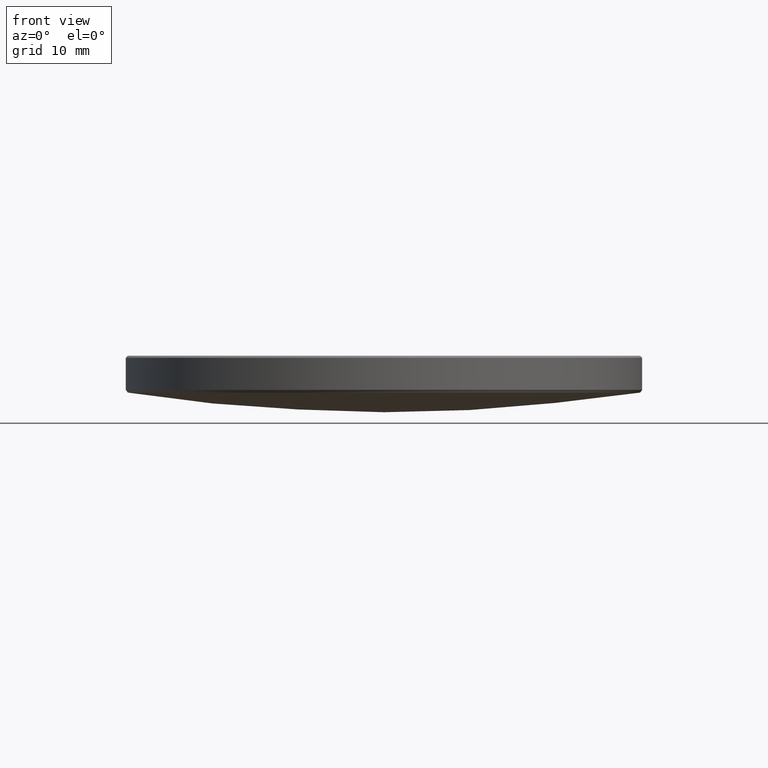
[diagram: clean part render]
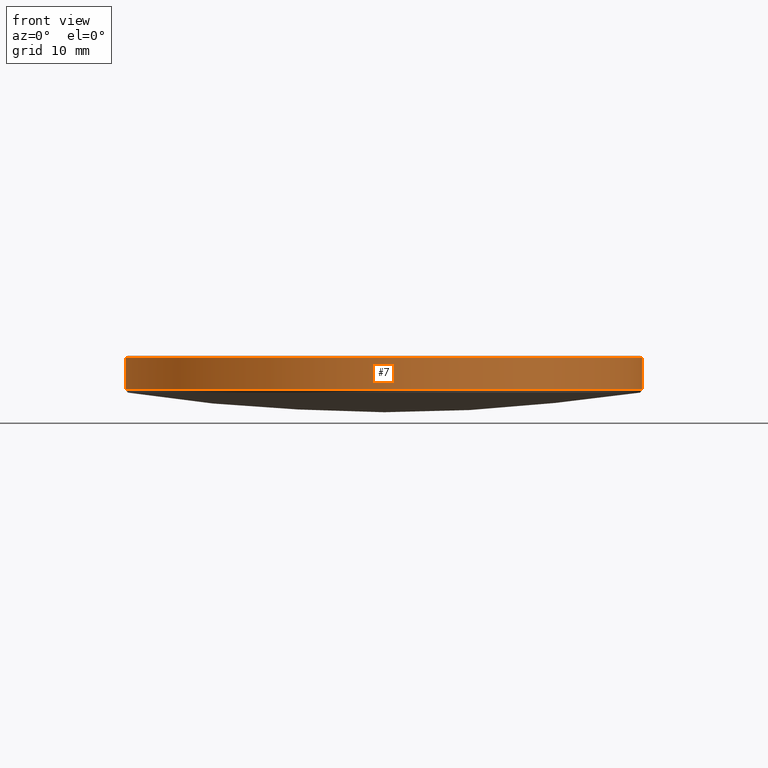
[diagram: same view with one face highlighted and labeled with its STEP entity id]
A machine part, front view. The second image highlights one B-rep face of the part: STEP entity #7.
In plain terms, the highlighted cylindrical surface (partial cylindrical patch) has radius 25.4 mm, axis along (-0, -0, -1).
Its self-contained STEP definition (entity closure, byte-faithful):
#7 = ADVANCED_FACE ( 'NONE', ( #220 ), #287, .T. ) ;
#13 = CIRCLE ( 'NONE', #73, 25.39999999999999858 ) ;
#15 = VERTEX_POINT ( 'NONE', #270 ) ;
#16 = EDGE_CURVE ( 'NONE', #15, #169, #13, .T. ) ;
#26 = DIRECTION ( 'NONE',  ( -0.000000000000000000, -0.000000000000000000, -1.000000000000000000 ) ) ;
#27 = EDGE_CURVE ( 'NONE', #269, #290, #260, .T. ) ;
#43 = CARTESIAN_POINT ( 'NONE',  ( 0.000000000000000000, 0.000000000000000000, 17.39999999999997016 ) ) ;
#49 = CARTESIAN_POINT ( 'NONE',  ( -25.39999999999999858, 0.000000000000000000, 20.00000000000000000 ) ) ;
#51 = CARTESIAN_POINT ( 'NONE',  ( -25.39999999999999858, 0.000000000000000000, 17.39999999999997016 ) ) ;
#61 = CARTESIAN_POINT ( 'NONE',  ( 0.000000000000000000, 0.000000000000000000, 20.00000000000000000 ) ) ;
#66 = DIRECTION ( 'NONE',  ( -0.000000000000000000, -0.000000000000000000, 1.000000000000000000 ) ) ;
#70 = ORIENTED_EDGE ( 'NONE', *, *, #16, .T. ) ;
#73 = AXIS2_PLACEMENT_3D ( 'NONE', #97, #66, #245 ) ;
#75 = LINE ( 'NONE', #322, #332 ) ;
#97 = CARTESIAN_POINT ( 'NONE',  ( 0.000000000000000000, 0.000000000000000000, 14.23965329215320885 ) ) ;
#100 = ORIENTED_EDGE ( 'NONE', *, *, #186, .T. ) ;
#112 = AXIS2_PLACEMENT_3D ( 'NONE', #43, #297, #248 ) ;
#116 = DIRECTION ( 'NONE',  ( -1.000000000000000000, 0.000000000000000000, 0.000000000000000000 ) ) ;
#144 = EDGE_LOOP ( 'NONE', ( #191, #210, #100, #70 ) ) ;
#145 = AXIS2_PLACEMENT_3D ( 'NONE', #61, #242, #116 ) ;
#156 = DIRECTION ( 'NONE',  ( -0.000000000000000000, -0.000000000000000000, -1.000000000000000000 ) ) ;
#164 = CARTESIAN_POINT ( 'NONE',  ( 25.39999999999999858, 3.110602869834276865E-15, 17.39999999999997016 ) ) ;
#169 = VERTEX_POINT ( 'NONE', #254 ) ;
#186 = EDGE_CURVE ( 'NONE', #290, #15, #225, .T. ) ;
#191 = ORIENTED_EDGE ( 'NONE', *, *, #298, .F. ) ;
#210 = ORIENTED_EDGE ( 'NONE', *, *, #27, .T. ) ;
#220 = FACE_OUTER_BOUND ( 'NONE', #144, .T. ) ;
#225 = LINE ( 'NONE', #49, #259 ) ;
#242 = DIRECTION ( 'NONE',  ( -0.000000000000000000, -0.000000000000000000, -1.000000000000000000 ) ) ;
#245 = DIRECTION ( 'NONE',  ( -1.000000000000000000, 0.000000000000000000, 0.000000000000000000 ) ) ;
#248 = DIRECTION ( 'NONE',  ( 1.000000000000000000, 0.000000000000000000, 0.000000000000000000 ) ) ;
#254 = CARTESIAN_POINT ( 'NONE',  ( 25.39999999999999858, 3.110602869834276865E-15, 14.23965329215320885 ) ) ;
#259 = VECTOR ( 'NONE', #26, 1000.000000000000000 ) ;
#260 = CIRCLE ( 'NONE', #112, 25.39999999999999858 ) ;
#269 = VERTEX_POINT ( 'NONE', #164 ) ;
#270 = CARTESIAN_POINT ( 'NONE',  ( -25.39999999999999858, 0.000000000000000000, 14.23965329215320885 ) ) ;
#287 = CYLINDRICAL_SURFACE ( 'NONE', #145, 25.39999999999999858 ) ;
#290 = VERTEX_POINT ( 'NONE', #51 ) ;
#297 = DIRECTION ( 'NONE',  ( 0.000000000000000000, 0.000000000000000000, -1.000000000000000000 ) ) ;
#298 = EDGE_CURVE ( 'NONE', #269, #169, #75, .T. ) ;
#322 = CARTESIAN_POINT ( 'NONE',  ( 25.39999999999999858, 3.110602869834276865E-15, 20.00000000000000000 ) ) ;
#332 = VECTOR ( 'NONE', #156, 1000.000000000000000 ) ;